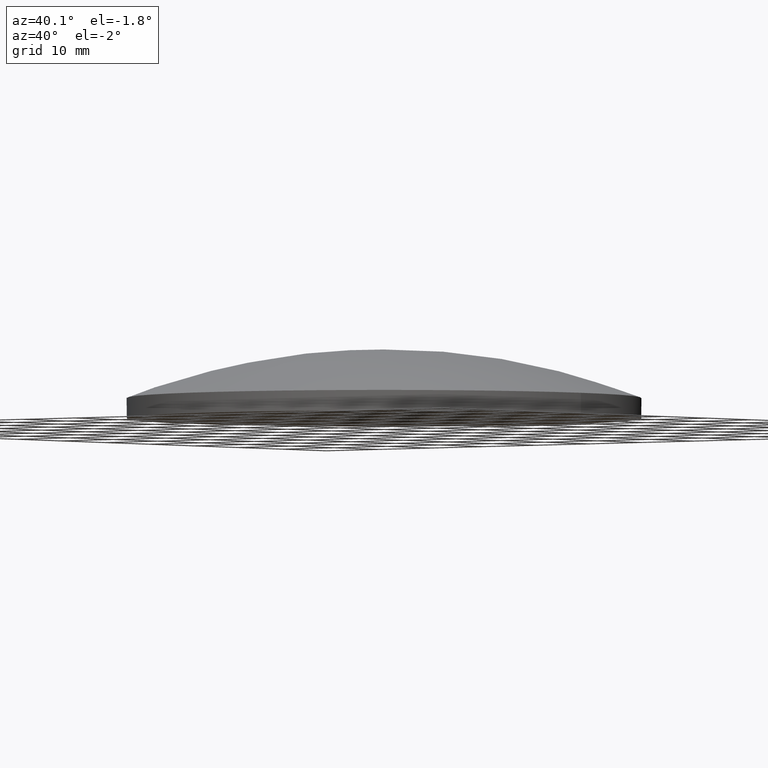
[diagram: clean part render]
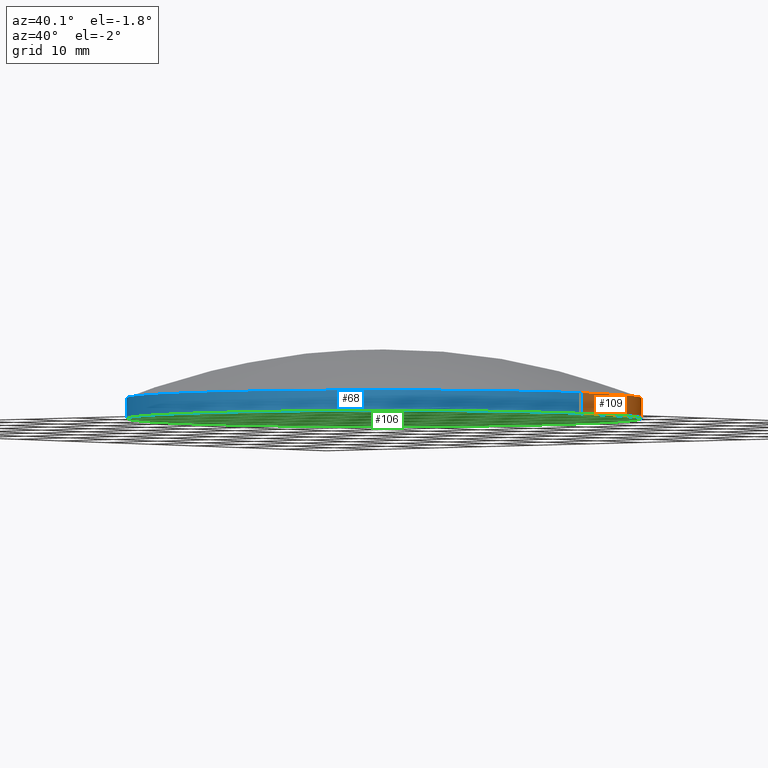
[diagram: same view with three faces highlighted in distinct colors, each labeled with its STEP entity id]
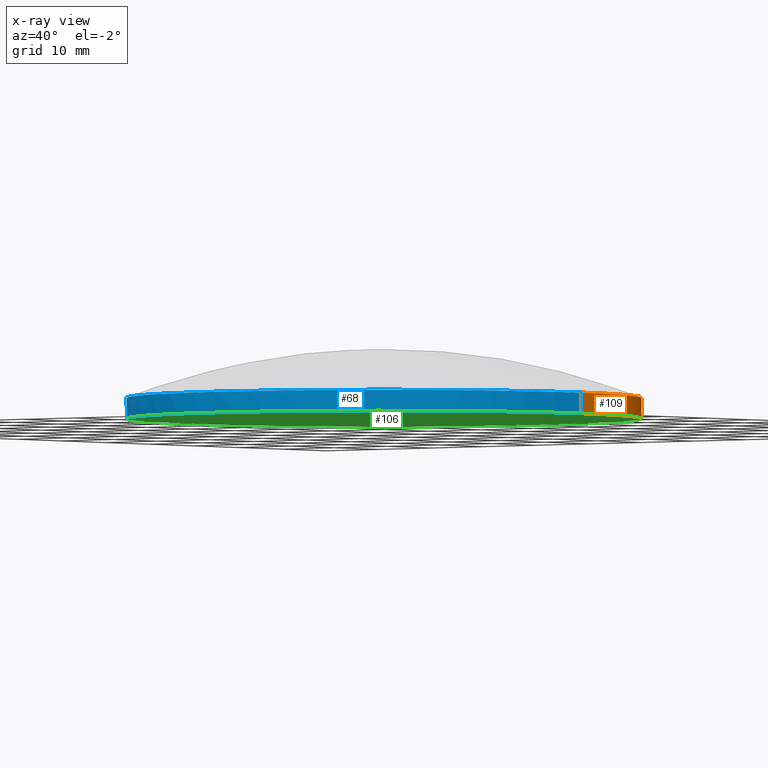
[diagram: x-ray of the same camera — body ghosted, the three highlighted faces saturated]
A machine part, auxiliary view with three faces highlighted in distinct colors.
The next image is the same camera in x-ray (body ghosted, the three faces saturated) — at least one of them is partly hidden behind the body in this view.
Their STEP definitions:

[orange] entity #109 — the highlighted cylindrical surface (partial cylindrical patch) has radius 37.5 mm, axis along (-0, -0, 1).
#47 = EDGE_CURVE ( 'NONE', #100, #63, #79, .T. ) ;
#48 = VERTEX_POINT ( 'NONE', #61 ) ;
#49 = EDGE_CURVE ( 'NONE', #48, #86, #60, .T. ) ;
#52 = CARTESIAN_POINT ( 'NONE',  ( 37.50000000000000000, 0.0000000000000000000, -2.038298430765758300 ) ) ;
#54 = DIRECTION ( 'NONE',  ( 1.000000000000000000, 0.0000000000000000000, 0.0000000000000000000 ) ) ;
#55 = DIRECTION ( 'NONE',  ( -0.0000000000000000000, -0.0000000000000000000, 1.000000000000000000 ) ) ;
#56 = CARTESIAN_POINT ( 'NONE',  ( 0.0000000000000000000, 0.0000000000000000000, -2.038298430765758300 ) ) ;
#57 = AXIS2_PLACEMENT_3D ( 'NONE', #56, #55, #54 ) ;
#60 = CIRCLE ( 'NONE', #57, 37.50000000000000000 ) ;
#61 = CARTESIAN_POINT ( 'NONE',  ( 0.0000000000000000000, 37.49999999999997900, -2.038298430765768100 ) ) ;
#62 = DIRECTION ( 'NONE',  ( -0.0000000000000000000, -0.0000000000000000000, 1.000000000000000000 ) ) ;
#63 = VERTEX_POINT ( 'NONE', #52 ) ;
#75 = ORIENTED_EDGE ( 'NONE', *, *, #102, .T. ) ;
#77 = VECTOR ( 'NONE', #62, 1000.000000000000000 ) ;
#78 = CARTESIAN_POINT ( 'NONE',  ( 37.49999999999999300, 0.0000000000000000000, 4.308132045400366600 ) ) ;
#79 = LINE ( 'NONE', #78, #77 ) ;
#86 = VERTEX_POINT ( 'NONE', #135 ) ;
#88 = ORIENTED_EDGE ( 'NONE', *, *, #49, .F. ) ;
#89 = EDGE_CURVE ( 'NONE', #103, #86, #202, .T. ) ;
#98 = ORIENTED_EDGE ( 'NONE', *, *, #47, .F. ) ;
#99 = ORIENTED_EDGE ( 'NONE', *, *, #113, .F. ) ;
#100 = VERTEX_POINT ( 'NONE', #198 ) ;
#102 = EDGE_CURVE ( 'NONE', #100, #103, #197, .T. ) ;
#103 = VERTEX_POINT ( 'NONE', #192 ) ;
#104 = ORIENTED_EDGE ( 'NONE', *, *, #89, .T. ) ;
#108 = EDGE_LOOP ( 'NONE', ( #75, #104, #88, #99, #98 ) ) ;
#109 = ADVANCED_FACE ( 'NONE', ( #168 ), #228, .T. ) ;
#113 = EDGE_CURVE ( 'NONE', #63, #48, #217, .T. ) ;
#135 = CARTESIAN_POINT ( 'NONE',  ( -37.50000000000000000, 4.592273826833913900E-015, -2.038298430765758300 ) ) ;
#168 = FACE_OUTER_BOUND ( 'NONE', #108, .T. ) ;
#192 = CARTESIAN_POINT ( 'NONE',  ( -37.49999999999999300, 4.592273826833913100E-015, -5.029999999999999400 ) ) ;
#193 = DIRECTION ( 'NONE',  ( 1.000000000000000000, 0.0000000000000000000, 0.0000000000000000000 ) ) ;
#194 = DIRECTION ( 'NONE',  ( -0.0000000000000000000, -0.0000000000000000000, 1.000000000000000000 ) ) ;
#195 = CARTESIAN_POINT ( 'NONE',  ( 0.0000000000000000000, 0.0000000000000000000, -5.029999999999999400 ) ) ;
#196 = AXIS2_PLACEMENT_3D ( 'NONE', #195, #194, #193 ) ;
#197 = CIRCLE ( 'NONE', #196, 37.49999999999999300 ) ;
#198 = CARTESIAN_POINT ( 'NONE',  ( 37.49999999999999300, 0.0000000000000000000, -5.029999999999999400 ) ) ;
#199 = DIRECTION ( 'NONE',  ( -0.0000000000000000000, -0.0000000000000000000, 1.000000000000000000 ) ) ;
#200 = VECTOR ( 'NONE', #199, 1000.000000000000000 ) ;
#201 = CARTESIAN_POINT ( 'NONE',  ( -37.49999999999999300, 4.592273826833913100E-015, 4.308132045400366600 ) ) ;
#202 = LINE ( 'NONE', #201, #200 ) ;
#213 = DIRECTION ( 'NONE',  ( 1.000000000000000000, 0.0000000000000000000, 0.0000000000000000000 ) ) ;
#214 = DIRECTION ( 'NONE',  ( -0.0000000000000000000, -0.0000000000000000000, 1.000000000000000000 ) ) ;
#215 = CARTESIAN_POINT ( 'NONE',  ( 0.0000000000000000000, 0.0000000000000000000, -2.038298430765758300 ) ) ;
#216 = AXIS2_PLACEMENT_3D ( 'NONE', #215, #214, #213 ) ;
#217 = CIRCLE ( 'NONE', #216, 37.50000000000000000 ) ;
#223 = DIRECTION ( 'NONE',  ( 1.000000000000000000, 0.0000000000000000000, 0.0000000000000000000 ) ) ;
#224 = DIRECTION ( 'NONE',  ( -0.0000000000000000000, -0.0000000000000000000, 1.000000000000000000 ) ) ;
#225 = CARTESIAN_POINT ( 'NONE',  ( 0.0000000000000000000, 0.0000000000000000000, 4.308132045400366600 ) ) ;
#226 = AXIS2_PLACEMENT_3D ( 'NONE', #225, #224, #223 ) ;
#228 = CYLINDRICAL_SURFACE ( 'NONE', #226, 37.49999999999999300 ) ;

[blue] entity #68 — the highlighted cylindrical surface (partial cylindrical patch) has radius 37.5 mm, axis along (-0, -0, 1).
#2 = AXIS2_PLACEMENT_3D ( 'NONE', #3, #4, #5 ) ;
#3 = CARTESIAN_POINT ( 'NONE',  ( 0.0000000000000000000, 0.0000000000000000000, 4.308132045400366600 ) ) ;
#4 = DIRECTION ( 'NONE',  ( -0.0000000000000000000, -0.0000000000000000000, 1.000000000000000000 ) ) ;
#5 = DIRECTION ( 'NONE',  ( 1.000000000000000000, 0.0000000000000000000, 0.0000000000000000000 ) ) ;
#17 = CYLINDRICAL_SURFACE ( 'NONE', #2, 37.49999999999999300 ) ;
#33 = ORIENTED_EDGE ( 'NONE', *, *, #105, .T. ) ;
#38 = DIRECTION ( 'NONE',  ( 1.000000000000000000, 0.0000000000000000000, 0.0000000000000000000 ) ) ;
#39 = DIRECTION ( 'NONE',  ( -0.0000000000000000000, -0.0000000000000000000, 1.000000000000000000 ) ) ;
#40 = CARTESIAN_POINT ( 'NONE',  ( 0.0000000000000000000, 0.0000000000000000000, -2.038298430765758300 ) ) ;
#41 = AXIS2_PLACEMENT_3D ( 'NONE', #40, #39, #38 ) ;
#42 = CIRCLE ( 'NONE', #41, 37.50000000000000000 ) ;
#43 = FACE_OUTER_BOUND ( 'NONE', #82, .T. ) ;
#47 = EDGE_CURVE ( 'NONE', #100, #63, #79, .T. ) ;
#52 = CARTESIAN_POINT ( 'NONE',  ( 37.50000000000000000, 0.0000000000000000000, -2.038298430765758300 ) ) ;
#58 = ORIENTED_EDGE ( 'NONE', *, *, #47, .T. ) ;
#59 = ORIENTED_EDGE ( 'NONE', *, *, #66, .F. ) ;
#62 = DIRECTION ( 'NONE',  ( -0.0000000000000000000, -0.0000000000000000000, 1.000000000000000000 ) ) ;
#63 = VERTEX_POINT ( 'NONE', #52 ) ;
#66 = EDGE_CURVE ( 'NONE', #111, #63, #42, .T. ) ;
#68 = ADVANCED_FACE ( 'NONE', ( #43 ), #17, .T. ) ;
#77 = VECTOR ( 'NONE', #62, 1000.000000000000000 ) ;
#78 = CARTESIAN_POINT ( 'NONE',  ( 37.49999999999999300, 0.0000000000000000000, 4.308132045400366600 ) ) ;
#79 = LINE ( 'NONE', #78, #77 ) ;
#82 = EDGE_LOOP ( 'NONE', ( #101, #33, #58, #59, #90 ) ) ;
#86 = VERTEX_POINT ( 'NONE', #135 ) ;
#89 = EDGE_CURVE ( 'NONE', #103, #86, #202, .T. ) ;
#90 = ORIENTED_EDGE ( 'NONE', *, *, #110, .F. ) ;
#100 = VERTEX_POINT ( 'NONE', #198 ) ;
#101 = ORIENTED_EDGE ( 'NONE', *, *, #89, .F. ) ;
#103 = VERTEX_POINT ( 'NONE', #192 ) ;
#105 = EDGE_CURVE ( 'NONE', #103, #100, #190, .T. ) ;
#110 = EDGE_CURVE ( 'NONE', #86, #111, #227, .T. ) ;
#111 = VERTEX_POINT ( 'NONE', #218 ) ;
#135 = CARTESIAN_POINT ( 'NONE',  ( -37.50000000000000000, 4.592273826833913900E-015, -2.038298430765758300 ) ) ;
#186 = DIRECTION ( 'NONE',  ( 1.000000000000000000, 0.0000000000000000000, 0.0000000000000000000 ) ) ;
#187 = DIRECTION ( 'NONE',  ( -0.0000000000000000000, -0.0000000000000000000, 1.000000000000000000 ) ) ;
#188 = CARTESIAN_POINT ( 'NONE',  ( 0.0000000000000000000, 0.0000000000000000000, -5.029999999999999400 ) ) ;
#189 = AXIS2_PLACEMENT_3D ( 'NONE', #188, #187, #186 ) ;
#190 = CIRCLE ( 'NONE', #189, 37.49999999999999300 ) ;
#192 = CARTESIAN_POINT ( 'NONE',  ( -37.49999999999999300, 4.592273826833913100E-015, -5.029999999999999400 ) ) ;
#198 = CARTESIAN_POINT ( 'NONE',  ( 37.49999999999999300, 0.0000000000000000000, -5.029999999999999400 ) ) ;
#199 = DIRECTION ( 'NONE',  ( -0.0000000000000000000, -0.0000000000000000000, 1.000000000000000000 ) ) ;
#200 = VECTOR ( 'NONE', #199, 1000.000000000000000 ) ;
#201 = CARTESIAN_POINT ( 'NONE',  ( -37.49999999999999300, 4.592273826833913100E-015, 4.308132045400366600 ) ) ;
#202 = LINE ( 'NONE', #201, #200 ) ;
#218 = CARTESIAN_POINT ( 'NONE',  ( -4.592273826833911600E-015, -37.49999999999997900, -2.038298430765768100 ) ) ;
#219 = DIRECTION ( 'NONE',  ( 1.000000000000000000, 0.0000000000000000000, 0.0000000000000000000 ) ) ;
#220 = DIRECTION ( 'NONE',  ( -0.0000000000000000000, -0.0000000000000000000, 1.000000000000000000 ) ) ;
#221 = CARTESIAN_POINT ( 'NONE',  ( 0.0000000000000000000, 0.0000000000000000000, -2.038298430765758300 ) ) ;
#222 = AXIS2_PLACEMENT_3D ( 'NONE', #221, #220, #219 ) ;
#227 = CIRCLE ( 'NONE', #222, 37.50000000000000000 ) ;

[green] entity #106 — the highlighted planar face has unit normal (0, -0, 1).
#76 = EDGE_LOOP ( 'NONE', ( #107, #81 ) ) ;
#81 = ORIENTED_EDGE ( 'NONE', *, *, #105, .F. ) ;
#100 = VERTEX_POINT ( 'NONE', #198 ) ;
#102 = EDGE_CURVE ( 'NONE', #100, #103, #197, .T. ) ;
#103 = VERTEX_POINT ( 'NONE', #192 ) ;
#105 = EDGE_CURVE ( 'NONE', #103, #100, #190, .T. ) ;
#106 = ADVANCED_FACE ( 'NONE', ( #185 ), #170, .F. ) ;
#107 = ORIENTED_EDGE ( 'NONE', *, *, #102, .F. ) ;
#164 = DIRECTION ( 'NONE',  ( 1.000000000000000000, 0.0000000000000000000, 0.0000000000000000000 ) ) ;
#165 = DIRECTION ( 'NONE',  ( 0.0000000000000000000, -0.0000000000000000000, 1.000000000000000000 ) ) ;
#166 = CARTESIAN_POINT ( 'NONE',  ( 0.0000000000000000000, 1.847992019913356200E-015, -5.029999999999999400 ) ) ;
#167 = AXIS2_PLACEMENT_3D ( 'NONE', #166, #165, #164 ) ;
#170 = PLANE ( 'NONE',  #167 ) ;
#185 = FACE_OUTER_BOUND ( 'NONE', #76, .T. ) ;
#186 = DIRECTION ( 'NONE',  ( 1.000000000000000000, 0.0000000000000000000, 0.0000000000000000000 ) ) ;
#187 = DIRECTION ( 'NONE',  ( -0.0000000000000000000, -0.0000000000000000000, 1.000000000000000000 ) ) ;
#188 = CARTESIAN_POINT ( 'NONE',  ( 0.0000000000000000000, 0.0000000000000000000, -5.029999999999999400 ) ) ;
#189 = AXIS2_PLACEMENT_3D ( 'NONE', #188, #187, #186 ) ;
#190 = CIRCLE ( 'NONE', #189, 37.49999999999999300 ) ;
#192 = CARTESIAN_POINT ( 'NONE',  ( -37.49999999999999300, 4.592273826833913100E-015, -5.029999999999999400 ) ) ;
#193 = DIRECTION ( 'NONE',  ( 1.000000000000000000, 0.0000000000000000000, 0.0000000000000000000 ) ) ;
#194 = DIRECTION ( 'NONE',  ( -0.0000000000000000000, -0.0000000000000000000, 1.000000000000000000 ) ) ;
#195 = CARTESIAN_POINT ( 'NONE',  ( 0.0000000000000000000, 0.0000000000000000000, -5.029999999999999400 ) ) ;
#196 = AXIS2_PLACEMENT_3D ( 'NONE', #195, #194, #193 ) ;
#197 = CIRCLE ( 'NONE', #196, 37.49999999999999300 ) ;
#198 = CARTESIAN_POINT ( 'NONE',  ( 37.49999999999999300, 0.0000000000000000000, -5.029999999999999400 ) ) ;